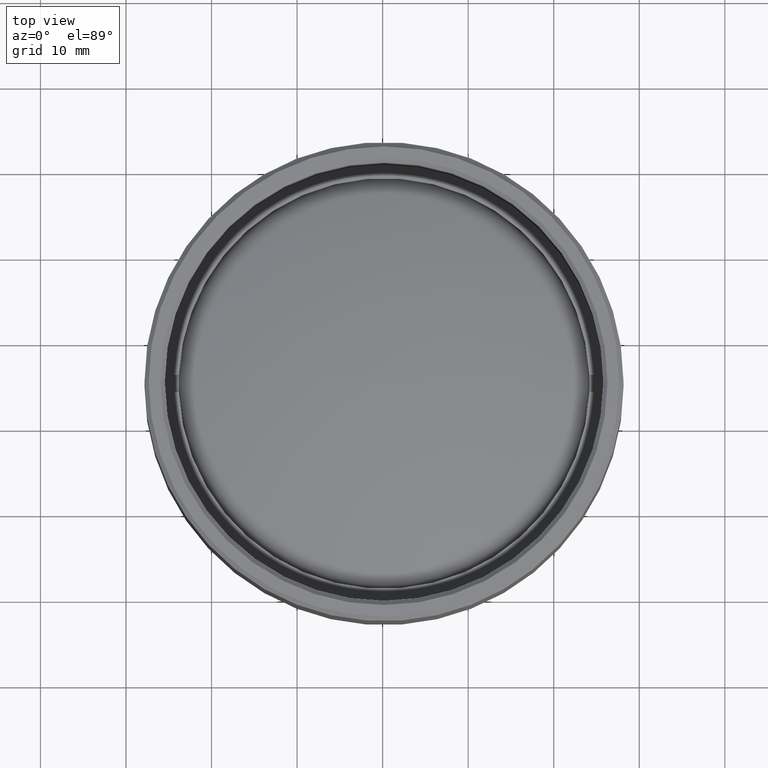
[diagram: clean part render]
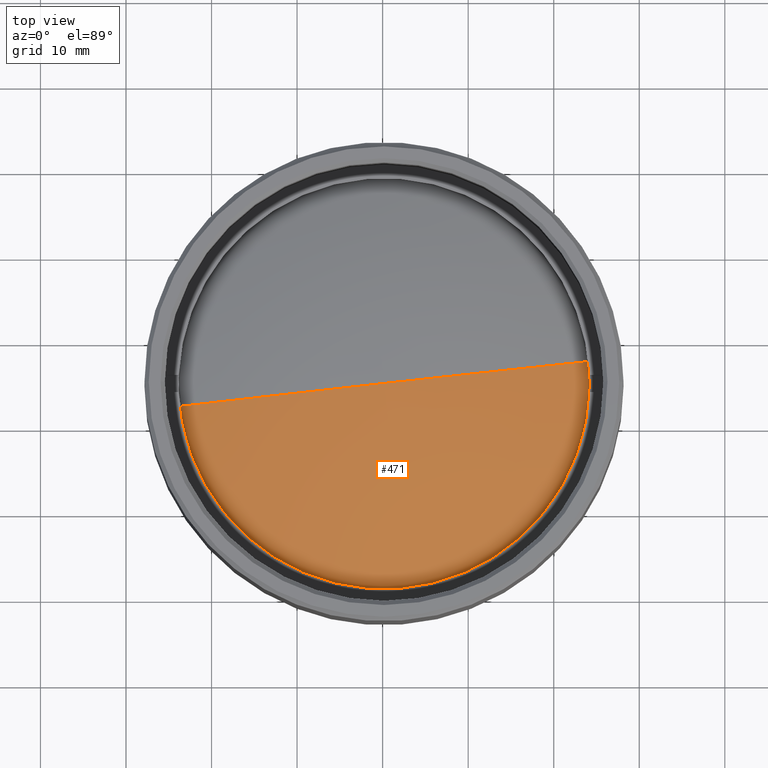
[diagram: same view with one face highlighted and labeled with its STEP entity id]
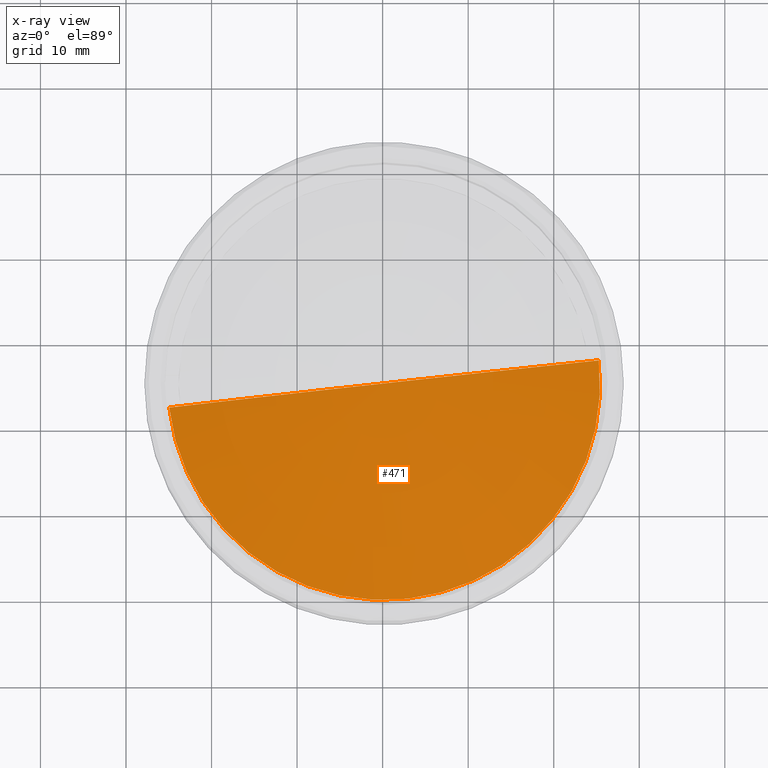
[diagram: x-ray of the same camera — body ghosted, the highlighted face saturated]
A machine part, top view. The second image highlights one B-rep face of the part: STEP entity #471.
The next image is the same camera in x-ray: the body ghosted, the highlighted face saturated — about 0% of this face is hidden behind the body in this view.
In plain terms, the highlighted spherical surface has radius 83.2 mm.
Its self-contained STEP definition (entity closure, byte-faithful):
#132 = VERTEX_POINT ( 'NONE', #703 ) ;
#138 = DIRECTION ( 'NONE',  ( -1.000000000000000000, 0.000000000000000000, -3.433637832581537121E-17 ) ) ;
#164 = CIRCLE ( 'NONE', #1570, 25.26072289156624961 ) ;
#309 = VERTEX_POINT ( 'NONE', #1446 ) ;
#356 = CARTESIAN_POINT ( 'NONE',  ( 0.000000000000000000, 0.000000000000000000, -83.20000000000000284 ) ) ;
#372 = SPHERICAL_SURFACE ( 'NONE', #1614, 83.20000000000000284 ) ;
#471 = ADVANCED_FACE ( 'NONE', ( #1321 ), #372, .T. ) ;
#613 = DIRECTION ( 'NONE',  ( 0.000000000000000000, 0.000000000000000000, -1.000000000000000000 ) ) ;
#703 = CARTESIAN_POINT ( 'NONE',  ( -25.26072289156624961, 0.000000000000000000, -3.927458227987305150 ) ) ;
#726 = EDGE_CURVE ( 'NONE', #309, #132, #1648, .T. ) ;
#816 = AXIS2_PLACEMENT_3D ( 'NONE', #1162, #1693, #613 ) ;
#1162 = CARTESIAN_POINT ( 'NONE',  ( 0.000000000000000000, 0.000000000000000000, -83.20000000000000284 ) ) ;
#1270 = DIRECTION ( 'NONE',  ( -3.433637832581534656E-17, 0.000000000000000000, 1.000000000000000000 ) ) ;
#1278 = CARTESIAN_POINT ( 'NONE',  ( -3.236028818045599931E-15, 0.000000000000000000, -3.927458227987305150 ) ) ;
#1321 = FACE_OUTER_BOUND ( 'NONE', #1748, .T. ) ;
#1322 = ORIENTED_EDGE ( 'NONE', *, *, #1434, .T. ) ;
#1434 = EDGE_CURVE ( 'NONE', #132, #309, #164, .T. ) ;
#1446 = CARTESIAN_POINT ( 'NONE',  ( 25.26072289156624961, 3.102074606582384664E-15, -3.927458227987305150 ) ) ;
#1552 = ORIENTED_EDGE ( 'NONE', *, *, #726, .T. ) ;
#1570 = AXIS2_PLACEMENT_3D ( 'NONE', #1278, #1270, #138 ) ;
#1614 = AXIS2_PLACEMENT_3D ( 'NONE', #356, #1723, #1742 ) ;
#1648 = CIRCLE ( 'NONE', #816, 83.20000000000000284 ) ;
#1693 = DIRECTION ( 'NONE',  ( 0.000000000000000000, -1.000000000000000000, 0.000000000000000000 ) ) ;
#1723 = DIRECTION ( 'NONE',  ( 0.000000000000000000, -0.000000000000000000, 1.000000000000000000 ) ) ;
#1742 = DIRECTION ( 'NONE',  ( -1.000000000000000000, 0.000000000000000000, 0.000000000000000000 ) ) ;
#1748 = EDGE_LOOP ( 'NONE', ( #1322, #1552 ) ) ;